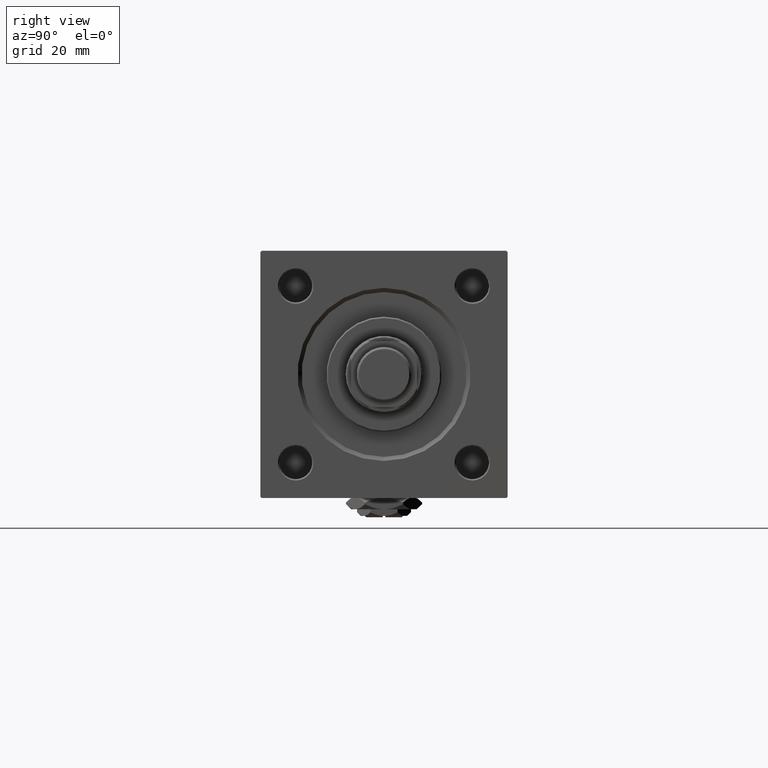
[diagram: clean part render]
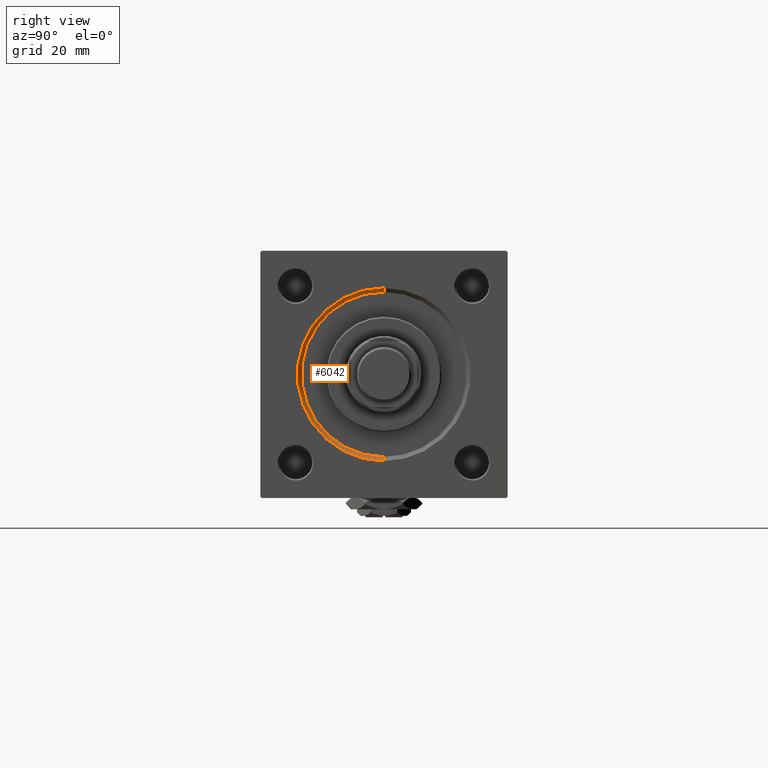
[diagram: same view with one face highlighted and labeled with its STEP entity id]
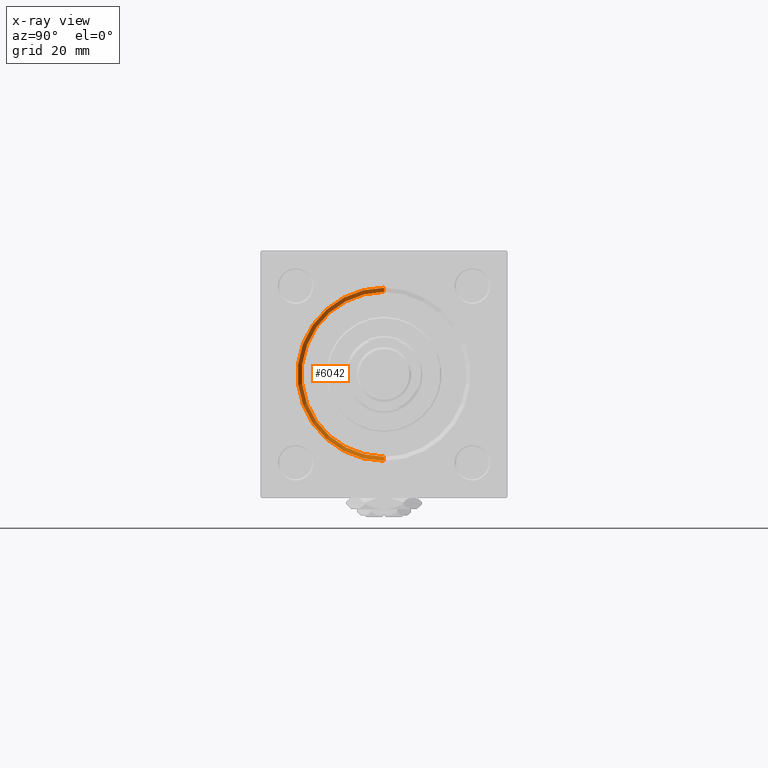
[diagram: x-ray of the same camera — body ghosted, the highlighted face saturated]
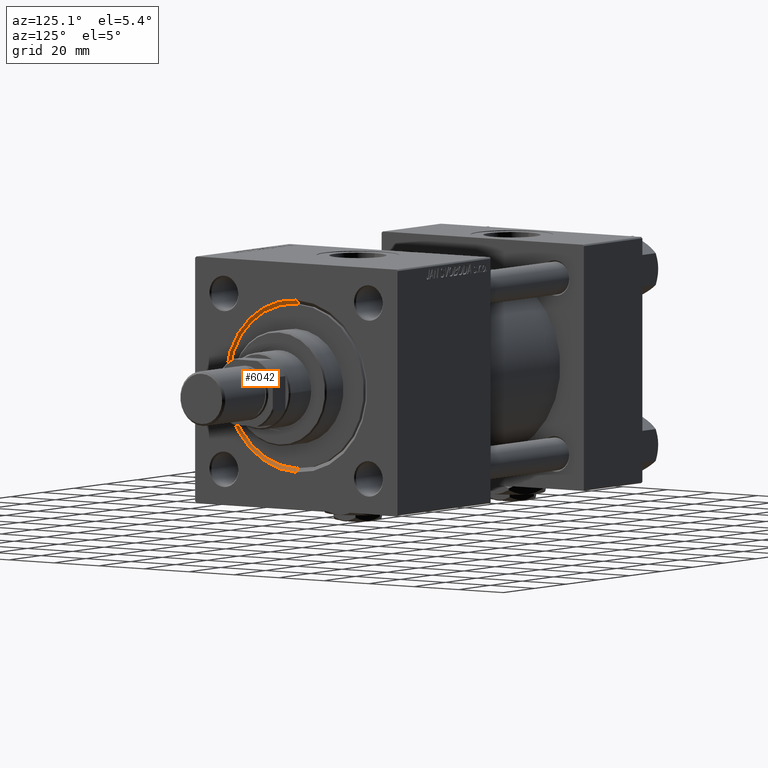
[diagram: same view with one face highlighted and labeled with its STEP entity id]
A machine part, right view. The second image highlights one B-rep face of the part: STEP entity #6042.
The next image is the same camera in x-ray: the body ghosted, the highlighted face saturated — about 0% of this face is hidden behind the body in this view.
A second angle (auxiliary view) of the same face is appended — the face is thin or edge-on in the first view.
In plain terms, the highlighted conical surface has half-angle 45 deg.
Its self-contained STEP definition (entity closure, byte-faithful):
#190 = VERTEX_POINT ( 'NONE', #16297 ) ;
#3169 = VERTEX_POINT ( 'NONE', #32067 ) ;
#3317 = DIRECTION ( 'NONE',  ( 1.000000000000000000, 0.000000000000000000, 0.000000000000000000 ) ) ;
#5595 = DIRECTION ( 'NONE',  ( 0.000000000000000000, 0.000000000000000000, 1.000000000000000000 ) ) ;
#6042 = ADVANCED_FACE ( 'NONE', ( #17694 ), #40007, .F. ) ;
#9109 = ORIENTED_EDGE ( 'NONE', *, *, #17864, .F. ) ;
#9599 = DIRECTION ( 'NONE',  ( -1.000000000000000000, -0.000000000000000000, -0.000000000000000000 ) ) ;
#10401 = CARTESIAN_POINT ( 'NONE',  ( 155.0000000000000000, 0.000000000000000000, 0.000000000000000000 ) ) ;
#13196 = DIRECTION ( 'NONE',  ( 1.000000000000000000, 0.000000000000000000, 0.000000000000000000 ) ) ;
#13454 = DIRECTION ( 'NONE',  ( 0.000000000000000000, 0.000000000000000000, -1.000000000000000000 ) ) ;
#13793 = DIRECTION ( 'NONE',  ( 0.7071067811865474617, 0.000000000000000000, -0.7071067811865474617 ) ) ;
#15322 = CARTESIAN_POINT ( 'NONE',  ( 153.5000000000000000, 0.000000000000000000, 0.000000000000000000 ) ) ;
#16297 = CARTESIAN_POINT ( 'NONE',  ( 155.0000000000000000, 0.000000000000000000, -31.50000000000000000 ) ) ;
#17179 = DIRECTION ( 'NONE',  ( 0.7071067811865474617, 8.659560562354932858E-17, 0.7071067811865474617 ) ) ;
#17694 = FACE_OUTER_BOUND ( 'NONE', #17859, .T. ) ;
#17859 = EDGE_LOOP ( 'NONE', ( #37315, #52159, #9109, #18958 ) ) ;
#17864 = EDGE_CURVE ( 'NONE', #190, #3169, #32659, .T. ) ;
#18116 = EDGE_CURVE ( 'NONE', #39905, #190, #37791, .T. ) ;
#18705 = AXIS2_PLACEMENT_3D ( 'NONE', #41713, #13196, #13454 ) ;
#18958 = ORIENTED_EDGE ( 'NONE', *, *, #18116, .F. ) ;
#28446 = CARTESIAN_POINT ( 'NONE',  ( 153.5000000000000000, 0.000000000000000000, -30.00000000000000000 ) ) ;
#28623 = CIRCLE ( 'NONE', #52517, 30.00000000000000000 ) ;
#29197 = LINE ( 'NONE', #29723, #29545 ) ;
#29545 = VECTOR ( 'NONE', #17179, 1000.000000000000114 ) ;
#29723 = CARTESIAN_POINT ( 'NONE',  ( 153.5000000000000000, 3.673940397442059178E-15, 30.00000000000000000 ) ) ;
#30067 = CARTESIAN_POINT ( 'NONE',  ( 153.5000000000000000, 0.000000000000000000, -30.00000000000000000 ) ) ;
#32067 = CARTESIAN_POINT ( 'NONE',  ( 155.0000000000000000, 3.857637417314162689E-15, 31.50000000000000000 ) ) ;
#32659 = CIRCLE ( 'NONE', #50567, 31.50000000000000000 ) ;
#37315 = ORIENTED_EDGE ( 'NONE', *, *, #40130, .F. ) ;
#37376 = CARTESIAN_POINT ( 'NONE',  ( 153.5000000000000000, 3.673940397442059178E-15, 30.00000000000000000 ) ) ;
#37734 = VECTOR ( 'NONE', #13793, 1000.000000000000114 ) ;
#37791 = LINE ( 'NONE', #30067, #37734 ) ;
#39905 = VERTEX_POINT ( 'NONE', #28446 ) ;
#40007 = CONICAL_SURFACE ( 'NONE', #18705, 30.00000000000000000, 0.7853981633974482790 ) ;
#40130 = EDGE_CURVE ( 'NONE', #50668, #39905, #28623, .T. ) ;
#41713 = CARTESIAN_POINT ( 'NONE',  ( 153.5000000000000000, 0.000000000000000000, 0.000000000000000000 ) ) ;
#50567 = AXIS2_PLACEMENT_3D ( 'NONE', #10401, #9599, #5595 ) ;
#50668 = VERTEX_POINT ( 'NONE', #37376 ) ;
#52152 = DIRECTION ( 'NONE',  ( 0.000000000000000000, 0.000000000000000000, 1.000000000000000000 ) ) ;
#52159 = ORIENTED_EDGE ( 'NONE', *, *, #52652, .T. ) ;
#52517 = AXIS2_PLACEMENT_3D ( 'NONE', #15322, #3317, #52152 ) ;
#52652 = EDGE_CURVE ( 'NONE', #50668, #3169, #29197, .T. ) ;